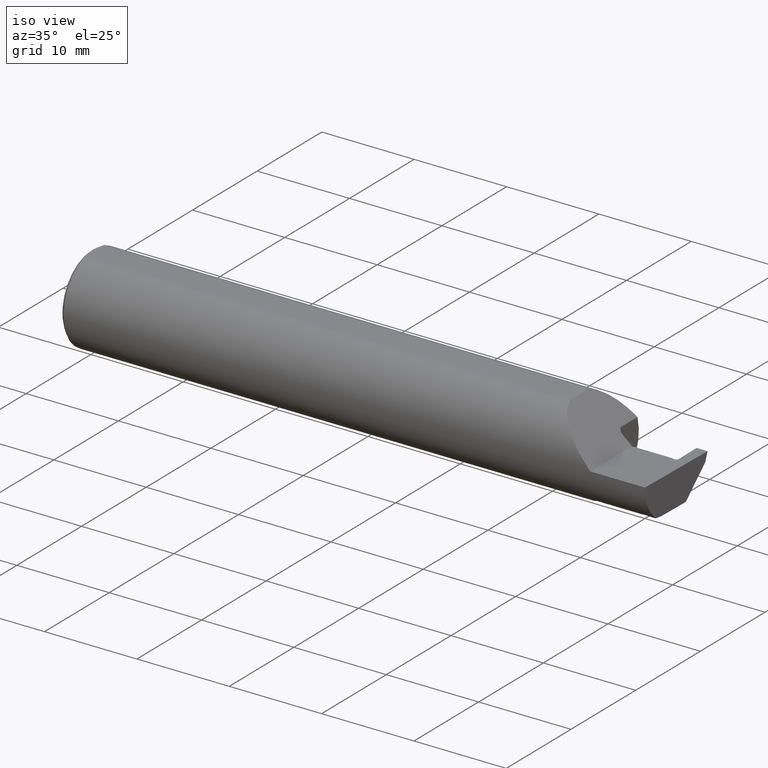
[diagram: clean part render]
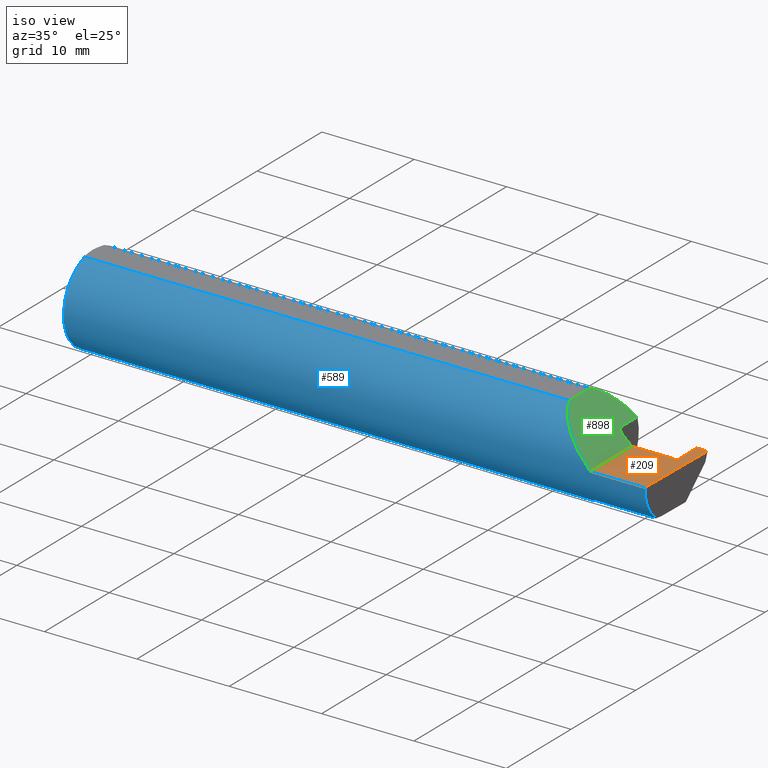
[diagram: same view with three faces highlighted in distinct colors, each labeled with its STEP entity id]
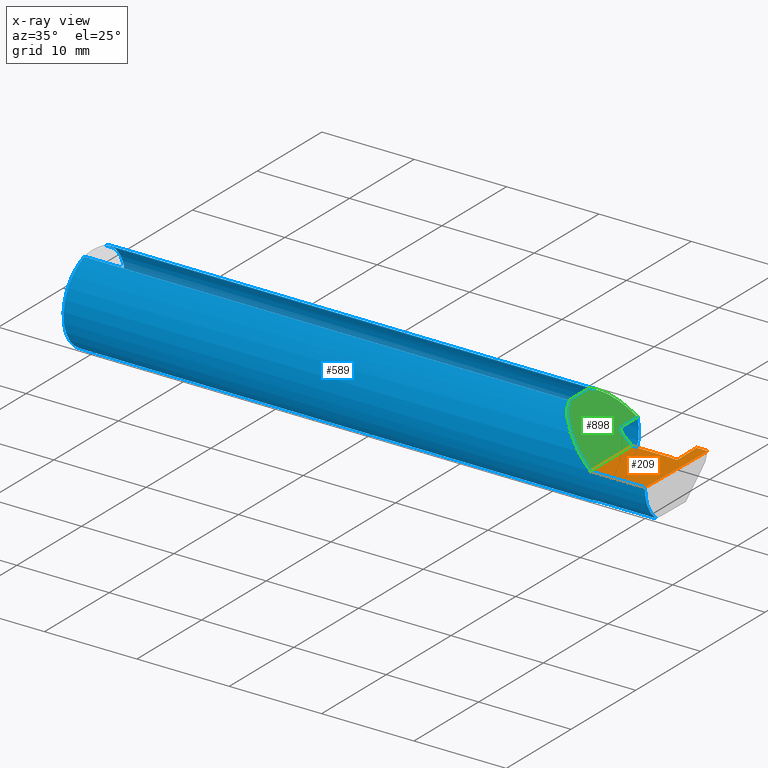
[diagram: x-ray of the same camera — body ghosted, the three highlighted faces saturated]
A machine part, iso view with three faces highlighted in distinct colors.
The next image is the same camera in x-ray (body ghosted, the three faces saturated) — at least one of them is partly hidden behind the body in this view.
Their STEP definitions:

[orange] entity #209 — the highlighted planar face has unit normal (-0, 0, -1).
#19 = CARTESIAN_POINT ( 'NONE',  ( 2.432999999988582296, 0.06464999999899190275, 1.634762571518729889E-10 ) ) ;
#24 = EDGE_CURVE ( 'NONE', #698, #407, #79, .T. ) ;
#39 = ORIENTED_EDGE ( 'NONE', *, *, #136, .T. ) ;
#53 = EDGE_CURVE ( 'NONE', #407, #386, #74, .T. ) ;
#58 = CARTESIAN_POINT ( 'NONE',  ( 2.260000000000000231, -0.1873499999999999888, 2.939152317953647352E-17 ) ) ;
#74 = LINE ( 'NONE', #361, #582 ) ;
#79 = LINE ( 'NONE', #500, #92 ) ;
#92 = VECTOR ( 'NONE', #443, 39.37007874015748143 ) ;
#96 = CARTESIAN_POINT ( 'NONE',  ( 2.452999999986549717, 0.1846500000000000363, -3.367778697655196529E-19 ) ) ;
#104 = ORIENTED_EDGE ( 'NONE', *, *, #891, .F. ) ;
#115 = ORIENTED_EDGE ( 'NONE', *, *, #53, .F. ) ;
#121 = LINE ( 'NONE', #694, #131 ) ;
#131 = VECTOR ( 'NONE', #815, 39.37007874015748143 ) ;
#136 = EDGE_CURVE ( 'NONE', #606, #875, #685, .T. ) ;
#169 = VERTEX_POINT ( 'NONE', #181 ) ;
#181 = CARTESIAN_POINT ( 'NONE',  ( 2.431000000000000494, 0.06664999999999988989, 9.135099441613365556E-18 ) ) ;
#194 = LINE ( 'NONE', #680, #519 ) ;
#209 = ADVANCED_FACE ( 'NONE', ( #528 ), #390, .F. ) ;
#231 = CARTESIAN_POINT ( 'NONE',  ( 2.447971356043616264, 0.06464999999999866687, -4.347370564169126606E-11 ) ) ;
#241 = CARTESIAN_POINT ( 'NONE',  ( 2.454970289910081593, 0.07177216684492376819, -4.877016300601304121E-11 ) ) ;
#259 = CARTESIAN_POINT ( 'NONE',  ( 2.454970289910081593, 0.07177216684492376819, -4.877016300601304121E-11 ) ) ;
#277 = VERTEX_POINT ( 'NONE', #914 ) ;
#286 = CARTESIAN_POINT ( 'NONE',  ( 2.454970289910081593, 0.07177216684492376819, -4.877016300601304121E-11 ) ) ;
#323 = LINE ( 'NONE', #547, #325 ) ;
#325 = VECTOR ( 'NONE', #470, 39.37007874015748143 ) ;
#361 = CARTESIAN_POINT ( 'NONE',  ( 3.749399456654646757E-32, -0.1873499999999999888, 3.061616997868384127E-16 ) ) ;
#365 = CARTESIAN_POINT ( 'NONE',  ( 2.431000000000000494, 0.06664999999999988989, 9.135099441613365556E-18 ) ) ;
#386 = VERTEX_POINT ( 'NONE', #58 ) ;
#390 = PLANE ( 'NONE',  #540 ) ;
#396 = ORIENTED_EDGE ( 'NONE', *, *, #851, .T. ) ;
#407 = VERTEX_POINT ( 'NONE', #918 ) ;
#443 = DIRECTION ( 'NONE',  ( -0.01745240643727703073, -0.9998476951563912696, 0.000000000000000000 ) ) ;
#452 = EDGE_CURVE ( 'NONE', #900, #606, #910, .T. ) ;
#455 = EDGE_LOOP ( 'NONE', ( #115, #793, #621, #396, #805, #39, #774, #104, #688 ) ) ;
#458 = EDGE_CURVE ( 'NONE', #875, #169, #469, .T. ) ;
#469 = B_SPLINE_CURVE_WITH_KNOTS ( 'NONE', 1,
 ( #792, #365 ),
 .UNSPECIFIED., .F., .F.,
 ( 2, 2 ),
 ( 0.000000000000000000, 7.184204878158464156E-05 ),
 .UNSPECIFIED. ) ;
#470 = DIRECTION ( 'NONE',  ( 1.000000000000000000, -0.000000000000000000, -0.000000000000000000 ) ) ;
#500 = CARTESIAN_POINT ( 'NONE',  ( 2.500000000000000000, 0.1846500000000000363, 0.000000000000000000 ) ) ;
#503 = CARTESIAN_POINT ( 'NONE',  ( 2.447971356043616264, 0.06464999999999866687, -4.347370564169126606E-11 ) ) ;
#512 = CARTESIAN_POINT ( 'NONE',  ( 2.452128833457462687, 0.06464999999995883762, -4.700298922309772551E-11 ) ) ;
#513 = VERTEX_POINT ( 'NONE', #96 ) ;
#519 = VECTOR ( 'NONE', #536, 39.37007874015748143 ) ;
#528 = FACE_OUTER_BOUND ( 'NONE', #455, .T. ) ;
#536 = DIRECTION ( 'NONE',  ( 1.000000000000000000, 0.000000000000000000, 0.000000000000000000 ) ) ;
#540 = AXIS2_PLACEMENT_3D ( 'NONE', #669, #605, #749 ) ;
#547 = CARTESIAN_POINT ( 'NONE',  ( 2.399999999999999911, 0.1846500000000000363, -3.367778697655196529E-19 ) ) ;
#572 = CARTESIAN_POINT ( 'NONE',  ( 2.455042847893950775, 0.06761532263369882112, -4.782922004236755124E-11 ) ) ;
#582 = VECTOR ( 'NONE', #595, 39.37007874015748143 ) ;
#595 = DIRECTION ( 'NONE',  ( -1.000000000000000000, -0.000000000000000000, -0.000000000000000000 ) ) ;
#605 = DIRECTION ( 'NONE',  ( -1.224646799147353700E-16, 0.000000000000000000, -1.000000000000000000 ) ) ;
#606 = VERTEX_POINT ( 'NONE', #668 ) ;
#621 = ORIENTED_EDGE ( 'NONE', *, *, #911, .F. ) ;
#651 = B_SPLINE_CURVE_WITH_KNOTS ( 'NONE', 1,
 ( #742, #241 ),
 .UNSPECIFIED., .F., .F.,
 ( 2, 2 ),
 ( 6.218240129447693061E-15, 0.002867533701424562331 ),
 .UNSPECIFIED. ) ;
#668 = CARTESIAN_POINT ( 'NONE',  ( 2.447971356043616264, 0.06464999999999866687, -4.347370564169126606E-11 ) ) ;
#669 = CARTESIAN_POINT ( 'NONE',  ( 2.500000000000000000, -0.2000000000000000111, 0.000000000000000000 ) ) ;
#680 = CARTESIAN_POINT ( 'NONE',  ( 2.205000000000000071, 0.06665000000000001479, 3.612708057484693206E-17 ) ) ;
#685 = B_SPLINE_CURVE_WITH_KNOTS ( 'NONE', 1,
 ( #231, #19 ),
 .UNSPECIFIED., .F., .F.,
 ( 2, 2 ),
 ( 1.387778780781445521E-17, 0.0003802724437978743932 ),
 .UNSPECIFIED. ) ;
#688 = ORIENTED_EDGE ( 'NONE', *, *, #924, .F. ) ;
#694 = CARTESIAN_POINT ( 'NONE',  ( 2.260000000000000231, -0.2000000000000000111, 2.939152317953647352E-17 ) ) ;
#698 = VERTEX_POINT ( 'NONE', #907 ) ;
#742 = CARTESIAN_POINT ( 'NONE',  ( 2.452999999986549717, 0.1846500000000000363, -3.367778697655196529E-19 ) ) ;
#749 = DIRECTION ( 'NONE',  ( -1.000000000000000000, 0.000000000000000000, 1.224646799147353700E-16 ) ) ;
#774 = ORIENTED_EDGE ( 'NONE', *, *, #458, .T. ) ;
#792 = CARTESIAN_POINT ( 'NONE',  ( 2.432999999988582296, 0.06464999999899190275, 1.634762571518729889E-10 ) ) ;
#793 = ORIENTED_EDGE ( 'NONE', *, *, #24, .F. ) ;
#805 = ORIENTED_EDGE ( 'NONE', *, *, #452, .T. ) ;
#815 = DIRECTION ( 'NONE',  ( -0.000000000000000000, 1.000000000000000000, -0.000000000000000000 ) ) ;
#851 = EDGE_CURVE ( 'NONE', #513, #900, #651, .T. ) ;
#875 = VERTEX_POINT ( 'NONE', #887 ) ;
#887 = CARTESIAN_POINT ( 'NONE',  ( 2.432999999988582296, 0.06464999999899190275, 1.634762571518729889E-10 ) ) ;
#891 = EDGE_CURVE ( 'NONE', #277, #169, #194, .T. ) ;
#900 = VERTEX_POINT ( 'NONE', #259 ) ;
#907 = CARTESIAN_POINT ( 'NONE',  ( 2.500000000000000000, 0.1846500000000000363, 0.000000000000000000 ) ) ;
#910 =( BOUNDED_CURVE ( )  B_SPLINE_CURVE ( 3, ( #286, #572, #512, #503 ),
 .UNSPECIFIED., .F., .T. ) 
 B_SPLINE_CURVE_WITH_KNOTS ( ( 4, 4 ),
 ( 1.301042606982605513E-18, 0.0002808519284744346906 ),
 .UNSPECIFIED. ) 
 CURVE ( )  GEOMETRIC_REPRESENTATION_ITEM ( )  RATIONAL_B_SPLINE_CURVE ( ( 1.000000000000000000, 0.8006061761999021531, 0.8006061761999021531, 1.000000000000000000 ) ) 
 REPRESENTATION_ITEM ( '' )  );
#911 = EDGE_CURVE ( 'NONE', #513, #698, #323, .T. ) ;
#914 = CARTESIAN_POINT ( 'NONE',  ( 2.260000000000000231, 0.06664999999999998703, 2.939152317953647352E-17 ) ) ;
#918 = CARTESIAN_POINT ( 'NONE',  ( 2.493506715846705468, -0.1873499999999999888, 0.000000000000000000 ) ) ;
#924 = EDGE_CURVE ( 'NONE', #386, #277, #121, .T. ) ;

[blue] entity #589 — the highlighted cylindrical surface (partial cylindrical patch) has radius 4.7587 mm, axis along (-1, -0, -0).
#1 = CARTESIAN_POINT ( 'NONE',  ( 2.205000000000000071, 0.1790950097015547027, 0.05500000000000044437 ) ) ;
#2 = CARTESIAN_POINT ( 'NONE',  ( 2.452970636338613453, -0.1208513501369361531, -0.1431606568512440725 ) ) ;
#3 = VERTEX_POINT ( 'NONE', #292 ) ;
#12 = CARTESIAN_POINT ( 'NONE',  ( 2.491063981715931686, -0.1623470442677541759, -0.1099340280425337851 ) ) ;
#13 =( BOUNDED_CURVE ( )  B_SPLINE_CURVE ( 3, ( #379, #12, #440, #85 ),
 .UNSPECIFIED., .F., .T. ) 
 B_SPLINE_CURVE_WITH_KNOTS ( ( 4, 4 ),
 ( 0.08839520912052888091, 0.9829226100289757406 ),
 .UNSPECIFIED. ) 
 CURVE ( )  GEOMETRIC_REPRESENTATION_ITEM ( )  RATIONAL_B_SPLINE_CURVE ( ( 1.000000000000000000, 0.9344226172588803170, 0.9344226172588803170, 1.000000000000000000 ) ) 
 REPRESENTATION_ITEM ( '' )  );
#29 = CARTESIAN_POINT ( 'NONE',  ( 2.176950117609040891, -0.1873500000000001275, 0.08304988239095997815 ) ) ;
#32 = CARTESIAN_POINT ( 'NONE',  ( 0.000000000000000000, 0.06039039658753697637, 0.1773499999999999799 ) ) ;
#38 = AXIS2_PLACEMENT_3D ( 'NONE', #100, #817, #798 ) ;
#43 = CARTESIAN_POINT ( 'NONE',  ( 2.447366197523236586, -0.1205152561587170268, -0.1434437764735944087 ) ) ;
#50 = ORIENTED_EDGE ( 'NONE', *, *, #839, .F. ) ;
#53 = EDGE_CURVE ( 'NONE', #407, #386, #74, .T. ) ;
#58 = CARTESIAN_POINT ( 'NONE',  ( 2.260000000000000231, -0.1873499999999999888, 2.939152317953647352E-17 ) ) ;
#59 = B_SPLINE_CURVE_WITH_KNOTS ( 'NONE', 3,
 ( #864, #643, #217, #633, #213, #2 ),
 .UNSPECIFIED., .F., .F.,
 ( 4, 2, 4 ),
 ( 0.0002880367379712617682, 0.0003798719638981595814, 0.0004717071898250573946 ),
 .UNSPECIFIED. ) ;
#60 = EDGE_CURVE ( 'NONE', #386, #566, #818, .T. ) ;
#64 = CARTESIAN_POINT ( 'NONE',  ( 2.438025625059659696, -0.1199519675431318100, -0.1439150721173130809 ) ) ;
#69 = CARTESIAN_POINT ( 'NONE',  ( 0.01499999999999999944, 0.000000000000000000, 0.000000000000000000 ) ) ;
#74 = LINE ( 'NONE', #361, #582 ) ;
#84 = EDGE_CURVE ( 'NONE', #491, #126, #362, .T. ) ;
#85 = CARTESIAN_POINT ( 'NONE',  ( 2.493506715846705468, -0.1873499999999999888, 0.000000000000000000 ) ) ;
#87 = ORIENTED_EDGE ( 'NONE', *, *, #84, .F. ) ;
#89 = CARTESIAN_POINT ( 'NONE',  ( 2.213439486659307676, -0.1064616213911158960, -0.1542305641651499637 ) ) ;
#100 = CARTESIAN_POINT ( 'NONE',  ( 0.000000000000000000, 0.000000000000000000, 0.000000000000000000 ) ) ;
#101 = VECTOR ( 'NONE', #612, 39.37007874015748143 ) ;
#103 = B_SPLINE_CURVE_WITH_KNOTS ( 'NONE', 3,
 ( #526, #228, #156, #371, #383, #89, #457, #520, #170, #658, #374, #166 ),
 .UNSPECIFIED., .F., .F.,
 ( 4, 2, 2, 2, 2, 4 ),
 ( 1.967976973658592312E-07, 0.0002120314145722278145, 0.0004238660314470897345, 0.0008475352651968003472, 0.001271204498946511014, 0.001694873732696221573 ),
 .UNSPECIFIED. ) ;
#126 = VERTEX_POINT ( 'NONE', #460 ) ;
#130 = ORIENTED_EDGE ( 'NONE', *, *, #224, .F. ) ;
#140 = DIRECTION ( 'NONE',  ( 0.000000000000000000, 0.000000000000000000, 1.000000000000000000 ) ) ;
#154 = CARTESIAN_POINT ( 'NONE',  ( 2.436647136148048620, -0.1172600179964007061, -0.1461167706989303094 ) ) ;
#156 = CARTESIAN_POINT ( 'NONE',  ( 2.224511795768553846, -0.1163687266324235220, -0.1468371510166788241 ) ) ;
#165 = VERTEX_POINT ( 'NONE', #518 ) ;
#166 = CARTESIAN_POINT ( 'NONE',  ( 2.205000000000000071, -0.06851976604679065053, -0.1743704796142198643 ) ) ;
#170 = CARTESIAN_POINT ( 'NONE',  ( 2.206843912362378646, -0.08846956905169091334, -0.1652353808078972641 ) ) ;
#182 = VECTOR ( 'NONE', #197, 39.37007874015748143 ) ;
#183 = VERTEX_POINT ( 'NONE', #677 ) ;
#188 = LINE ( 'NONE', #328, #101 ) ;
#189 = CARTESIAN_POINT ( 'NONE',  ( 2.452970636338613453, -0.1208513501369361531, -0.1431606568512440725 ) ) ;
#193 = B_SPLINE_CURVE_WITH_KNOTS ( 'NONE', 3,
 ( #568, #923, #863, #285 ),
 .UNSPECIFIED., .F., .F.,
 ( 4, 4 ),
 ( 4.610090873601838277E-18, 9.501582085341606619E-05 ),
 .UNSPECIFIED. ) ;
#197 = DIRECTION ( 'NONE',  ( -1.000000000000000000, -0.000000000000000000, -0.000000000000000000 ) ) ;
#205 = CARTESIAN_POINT ( 'NONE',  ( 2.445498067408689469, -0.1204029065482854904, -0.1435380930435697644 ) ) ;
#210 = ORIENTED_EDGE ( 'NONE', *, *, #748, .F. ) ;
#213 = CARTESIAN_POINT ( 'NONE',  ( 2.454215874547053922, -0.1209258949558986995, -0.1430977286542417515 ) ) ;
#217 = CARTESIAN_POINT ( 'NONE',  ( 2.457039432924772893, -0.1189753745793368372, -0.1447262979170398645 ) ) ;
#221 = CARTESIAN_POINT ( 'NONE',  ( 2.082650000000001445, 0.06039039658753697637, 0.1773499999999999799 ) ) ;
#224 = EDGE_CURVE ( 'NONE', #838, #592, #705, .T. ) ;
#226 = DIRECTION ( 'NONE',  ( -1.000000000000000000, -0.000000000000000000, -0.000000000000000000 ) ) ;
#228 = CARTESIAN_POINT ( 'NONE',  ( 2.227174967710399134, -0.1172600179964007061, -0.1461167706989302539 ) ) ;
#230 = EDGE_CURVE ( 'NONE', #486, #356, #449, .T. ) ;
#237 = CARTESIAN_POINT ( 'NONE',  ( 0.01499999999999756042, 0.06039039658754215278, 0.1773499999999999799 ) ) ;
#247 = CARTESIAN_POINT ( 'NONE',  ( 2.082650000000001445, -0.06039039658753699025, 0.1773499999999999799 ) ) ;
#262 = EDGE_CURVE ( 'NONE', #3, #183, #706, .T. ) ;
#272 = ORIENTED_EDGE ( 'NONE', *, *, #53, .T. ) ;
#275 = CARTESIAN_POINT ( 'NONE',  ( 2.102408703912463483, 0.1184162804513036737, 0.1575912960875374691 ) ) ;
#285 = CARTESIAN_POINT ( 'NONE',  ( 2.436647136148048620, -0.1172600179964007061, -0.1461167706989303094 ) ) ;
#287 = ORIENTED_EDGE ( 'NONE', *, *, #824, .T. ) ;
#288 = EDGE_CURVE ( 'NONE', #721, #165, #869, .T. ) ;
#292 = CARTESIAN_POINT ( 'NONE',  ( 2.490903355898018923, -0.1172600179964007477, -0.1461167706989302817 ) ) ;
#300 = CYLINDRICAL_SURFACE ( 'NONE', #38, 0.1873499999999999888 ) ;
#306 = DIRECTION ( 'NONE',  ( -1.000000000000000000, -0.000000000000000000, -0.000000000000000000 ) ) ;
#308 = AXIS2_PLACEMENT_3D ( 'NONE', #69, #226, #140 ) ;
#315 = AXIS2_PLACEMENT_3D ( 'NONE', #664, #306, #590 ) ;
#320 = DIRECTION ( 'NONE',  ( -1.000000000000000000, -0.000000000000000000, -0.000000000000000000 ) ) ;
#328 = CARTESIAN_POINT ( 'NONE',  ( 0.000000000000000000, -0.06039039658753697637, 0.1773499999999999799 ) ) ;
#356 = VERTEX_POINT ( 'NONE', #555 ) ;
#361 = CARTESIAN_POINT ( 'NONE',  ( 3.749399456654646757E-32, -0.1873499999999999888, 3.061616997868384127E-16 ) ) ;
#362 = CIRCLE ( 'NONE', #478, 0.1873499999999999888 ) ;
#371 = CARTESIAN_POINT ( 'NONE',  ( 2.220028532764138252, -0.1137241120808236000, -0.1488947809299402958 ) ) ;
#374 = CARTESIAN_POINT ( 'NONE',  ( 2.204999999999999627, -0.07368234487347197215, -0.1723418180300748115 ) ) ;
#379 = CARTESIAN_POINT ( 'NONE',  ( 2.490903355898018923, -0.1172600179964007477, -0.1461167706989302817 ) ) ;
#383 = CARTESIAN_POINT ( 'NONE',  ( 2.218203859946834555, -0.1120371980050638844, -0.1501764597936558476 ) ) ;
#386 = VERTEX_POINT ( 'NONE', #58 ) ;
#388 = DIRECTION ( 'NONE',  ( -1.000000000000000000, -0.000000000000000000, -0.000000000000000000 ) ) ;
#395 = CARTESIAN_POINT ( 'NONE',  ( 2.082650000000001445, -0.06039039658753699025, 0.1773499999999999799 ) ) ;
#398 = VECTOR ( 'NONE', #388, 39.37007874015748143 ) ;
#407 = VERTEX_POINT ( 'NONE', #918 ) ;
#410 = CARTESIAN_POINT ( 'NONE',  ( 2.338999999999999968, -0.1172600179964007477, -0.1461167706989302817 ) ) ;
#414 = CARTESIAN_POINT ( 'NONE',  ( 2.450479766355329048, -0.1207021382821599764, -0.1432865166685463043 ) ) ;
#429 = CARTESIAN_POINT ( 'NONE',  ( 2.205000000000000071, -0.06851976604679065053, -0.1743704796142198643 ) ) ;
#440 = CARTESIAN_POINT ( 'NONE',  ( 2.491992669264299742, -0.1873499999999999888, -0.05781030015605114619 ) ) ;
#444 = EDGE_CURVE ( 'NONE', #183, #721, #59, .T. ) ;
#449 = LINE ( 'NONE', #874, #895 ) ;
#453 = LINE ( 'NONE', #32, #398 ) ;
#457 = CARTESIAN_POINT ( 'NONE',  ( 2.211304331342287988, -0.1022198306720691757, -0.1570962426853818317 ) ) ;
#460 = CARTESIAN_POINT ( 'NONE',  ( 2.205000000000000071, 0.1790950097015547027, 0.05500000000000044437 ) ) ;
#465 = ORIENTED_EDGE ( 'NONE', *, *, #511, .F. ) ;
#468 = VERTEX_POINT ( 'NONE', #563 ) ;
#478 = AXIS2_PLACEMENT_3D ( 'NONE', #812, #889, #522 ) ;
#486 = VERTEX_POINT ( 'NONE', #154 ) ;
#489 = EDGE_CURVE ( 'NONE', #592, #468, #860, .T. ) ;
#491 = VERTEX_POINT ( 'NONE', #429 ) ;
#511 = EDGE_CURVE ( 'NONE', #707, #838, #453, .T. ) ;
#518 = CARTESIAN_POINT ( 'NONE',  ( 2.438025625059659696, -0.1199519675431318100, -0.1439150721173130809 ) ) ;
#520 = CARTESIAN_POINT ( 'NONE',  ( 2.207960551809340810, -0.09317341542745750937, -0.1626248379125196930 ) ) ;
#522 = DIRECTION ( 'NONE',  ( 0.000000000000000000, 0.000000000000000000, -1.000000000000000000 ) ) ;
#526 = CARTESIAN_POINT ( 'NONE',  ( 2.229999999999999982, -0.1172600179964006922, -0.1461167706989302817 ) ) ;
#529 = ORIENTED_EDGE ( 'NONE', *, *, #737, .T. ) ;
#545 = CARTESIAN_POINT ( 'NONE',  ( 2.441761829506831738, -0.1201777670996134612, -0.1437266445542133841 ) ) ;
#555 = CARTESIAN_POINT ( 'NONE',  ( 2.229999999999999982, -0.1172600179964006922, -0.1461167706989302817 ) ) ;
#556 = ORIENTED_EDGE ( 'NONE', *, *, #444, .F. ) ;
#563 = CARTESIAN_POINT ( 'NONE',  ( 0.01499999999999999944, -0.06039039658753697637, 0.1773499999999999799 ) ) ;
#565 =( BOUNDED_CURVE ( )  B_SPLINE_CURVE ( 3, ( #221, #275, #642, #1 ),
 .UNSPECIFIED., .F., .T. ) 
 B_SPLINE_CURVE_WITH_KNOTS ( ( 4, 4 ),
 ( 0.3282003792178449508, 1.272838961666674873 ),
 .UNSPECIFIED. ) 
 CURVE ( )  GEOMETRIC_REPRESENTATION_ITEM ( )  RATIONAL_B_SPLINE_CURVE ( ( 1.000000000000000000, 0.9270103440186696631, 0.9270103440186696631, 1.000000000000000000 ) ) 
 REPRESENTATION_ITEM ( '' )  );
#566 = VERTEX_POINT ( 'NONE', #247 ) ;
#568 = CARTESIAN_POINT ( 'NONE',  ( 2.438025625059659696, -0.1199519675431318100, -0.1439150721173130809 ) ) ;
#582 = VECTOR ( 'NONE', #595, 39.37007874015748143 ) ;
#589 = ADVANCED_FACE ( 'NONE', ( #877 ), #300, .T. ) ;
#590 = DIRECTION ( 'NONE',  ( 0.000000000000000000, 0.000000000000000000, 1.000000000000000000 ) ) ;
#592 = VERTEX_POINT ( 'NONE', #594 ) ;
#594 = CARTESIAN_POINT ( 'NONE',  ( 0.01499999999999999944, 0.000000000000000000, -0.1873499999999999888 ) ) ;
#595 = DIRECTION ( 'NONE',  ( -1.000000000000000000, -0.000000000000000000, -0.000000000000000000 ) ) ;
#597 = ORIENTED_EDGE ( 'NONE', *, *, #60, .T. ) ;
#601 = CARTESIAN_POINT ( 'NONE',  ( 2.109420298020488804, -0.1390074056189584684, 0.1505797019795120650 ) ) ;
#612 = DIRECTION ( 'NONE',  ( 1.000000000000000000, 0.000000000000000000, 0.000000000000000000 ) ) ;
#616 = ORIENTED_EDGE ( 'NONE', *, *, #230, .F. ) ;
#619 = CARTESIAN_POINT ( 'NONE',  ( 2.452970636338613453, -0.1208513501369361531, -0.1431606568512440725 ) ) ;
#626 = ORIENTED_EDGE ( 'NONE', *, *, #489, .F. ) ;
#633 = CARTESIAN_POINT ( 'NONE',  ( 2.455366610645389969, -0.1203676099590725301, -0.1435704688917810168 ) ) ;
#642 = CARTESIAN_POINT ( 'NONE',  ( 2.146403178835508463, 0.1610999512718552795, 0.1135968211644918235 ) ) ;
#643 = CARTESIAN_POINT ( 'NONE',  ( 2.457654169373977293, -0.1181371521106755890, -0.1454128627112767080 ) ) ;
#658 = CARTESIAN_POINT ( 'NONE',  ( 2.205358271039144391, -0.07873626113568084339, -0.1700887912276896619 ) ) ;
#664 = CARTESIAN_POINT ( 'NONE',  ( 0.01499999999999999944, 0.000000000000000000, 0.000000000000000000 ) ) ;
#670 = ORIENTED_EDGE ( 'NONE', *, *, #880, .F. ) ;
#677 = CARTESIAN_POINT ( 'NONE',  ( 2.458156987516915581, -0.1172600179964006784, -0.1461167706989302262 ) ) ;
#687 = CARTESIAN_POINT ( 'NONE',  ( 2.451725198846265386, -0.1207767932037570741, -0.1432235952746555019 ) ) ;
#692 = CARTESIAN_POINT ( 'NONE',  ( 2.439893721692793616, -0.1200649772597332660, -0.1438208794962179404 ) ) ;
#700 = CARTESIAN_POINT ( 'NONE',  ( 2.082650000000001445, 0.06039039658753697637, 0.1773499999999999799 ) ) ;
#702 = ORIENTED_EDGE ( 'NONE', *, *, #262, .F. ) ;
#705 = CIRCLE ( 'NONE', #315, 0.1873499999999999888 ) ;
#706 = LINE ( 'NONE', #410, #182 ) ;
#707 = VERTEX_POINT ( 'NONE', #700 ) ;
#721 = VERTEX_POINT ( 'NONE', #189 ) ;
#737 = EDGE_CURVE ( 'NONE', #707, #126, #565, .T. ) ;
#748 = EDGE_CURVE ( 'NONE', #165, #486, #193, .T. ) ;
#750 = ORIENTED_EDGE ( 'NONE', *, *, #288, .F. ) ;
#754 = CARTESIAN_POINT ( 'NONE',  ( 2.260000000000000231, -0.1873499999999999888, 2.939152317953647352E-17 ) ) ;
#798 = DIRECTION ( 'NONE',  ( 0.000000000000000000, 0.000000000000000000, 1.000000000000000000 ) ) ;
#812 = CARTESIAN_POINT ( 'NONE',  ( 2.205000000000000071, 0.000000000000000000, 0.000000000000000000 ) ) ;
#817 = DIRECTION ( 'NONE',  ( -1.000000000000000000, -0.000000000000000000, -0.000000000000000000 ) ) ;
#818 =( BOUNDED_CURVE ( )  B_SPLINE_CURVE ( 3, ( #754, #29, #601, #395 ),
 .UNSPECIFIED., .F., .F. ) 
 B_SPLINE_CURVE_WITH_KNOTS ( ( 4, 4 ),
 ( 4.712388980384688786, 5.954984927961740837 ),
 .UNSPECIFIED. ) 
 CURVE ( )  GEOMETRIC_REPRESENTATION_ITEM ( )  RATIONAL_B_SPLINE_CURVE ( ( 1.000000000000000000, 0.8754157352537689230, 0.8754157352537689230, 1.000000000000000000 ) ) 
 REPRESENTATION_ITEM ( '' )  );
#824 = EDGE_CURVE ( 'NONE', #3, #407, #13, .T. ) ;
#833 = CARTESIAN_POINT ( 'NONE',  ( 2.449234338863458760, -0.1206273854352417213, -0.1433494205884963957 ) ) ;
#838 = VERTEX_POINT ( 'NONE', #237 ) ;
#839 = EDGE_CURVE ( 'NONE', #356, #491, #103, .T. ) ;
#860 = CIRCLE ( 'NONE', #308, 0.1873499999999999888 ) ;
#863 = CARTESIAN_POINT ( 'NONE',  ( 2.437107804970411795, -0.1181637442922656711, -0.1453915222472292601 ) ) ;
#864 = CARTESIAN_POINT ( 'NONE',  ( 2.458156987516915581, -0.1172600179964006784, -0.1461167706989302262 ) ) ;
#869 = B_SPLINE_CURVE_WITH_KNOTS ( 'NONE', 3,
 ( #619, #687, #414, #833, #43, #205, #903, #545, #692, #64 ),
 .UNSPECIFIED., .F., .F.,
 ( 4, 3, 3, 4 ),
 ( 0.000000000000000000, 9.519312345566919849E-05, 0.0002379828170348225011, 0.0003807725187854991847 ),
 .UNSPECIFIED. ) ;
#874 = CARTESIAN_POINT ( 'NONE',  ( 2.338999999999999968, -0.1172600179964007477, -0.1461167706989302817 ) ) ;
#877 = FACE_OUTER_BOUND ( 'NONE', #894, .T. ) ;
#880 = EDGE_CURVE ( 'NONE', #468, #566, #188, .T. ) ;
#889 = DIRECTION ( 'NONE',  ( 1.000000000000000000, 0.000000000000000000, 0.000000000000000000 ) ) ;
#894 = EDGE_LOOP ( 'NONE', ( #702, #287, #272, #597, #670, #626, #130, #465, #529, #87, #50, #616, #210, #750, #556 ) ) ;
#895 = VECTOR ( 'NONE', #320, 39.37007874015748143 ) ;
#903 = CARTESIAN_POINT ( 'NONE',  ( 2.443629948511212735, -0.1202903368271704132, -0.1436323687961940654 ) ) ;
#918 = CARTESIAN_POINT ( 'NONE',  ( 2.493506715846705468, -0.1873499999999999888, 0.000000000000000000 ) ) ;
#923 = CARTESIAN_POINT ( 'NONE',  ( 2.437567358599292966, -0.1190611272264851667, -0.1446575798142234470 ) ) ;

[green] entity #898 — the highlighted planar face has unit normal (-0.7071, 0, -0.7071).
#1 = CARTESIAN_POINT ( 'NONE',  ( 2.205000000000000071, 0.1790950097015547027, 0.05500000000000044437 ) ) ;
#14 = CARTESIAN_POINT ( 'NONE',  ( 2.260000000000000231, 0.06664999999999998703, 2.939152317953647352E-17 ) ) ;
#18 = CARTESIAN_POINT ( 'NONE',  ( 2.082650000000001445, -0.1873500000000000165, 0.1773499999999999799 ) ) ;
#29 = CARTESIAN_POINT ( 'NONE',  ( 2.176950117609040891, -0.1873500000000001275, 0.08304988239095997815 ) ) ;
#55 = AXIS2_PLACEMENT_3D ( 'NONE', #901, #481, #476 ) ;
#58 = CARTESIAN_POINT ( 'NONE',  ( 2.260000000000000231, -0.1873499999999999888, 2.939152317953647352E-17 ) ) ;
#60 = EDGE_CURVE ( 'NONE', #386, #566, #818, .T. ) ;
#118 = CARTESIAN_POINT ( 'NONE',  ( 2.224592470555872836, 0.06287337828823326424, 0.03540752944412774855 ) ) ;
#121 = LINE ( 'NONE', #694, #131 ) ;
#126 = VERTEX_POINT ( 'NONE', #460 ) ;
#131 = VECTOR ( 'NONE', #815, 39.37007874015748143 ) ;
#160 = ORIENTED_EDGE ( 'NONE', *, *, #60, .F. ) ;
#190 = CARTESIAN_POINT ( 'NONE',  ( 2.211520456256380385, 0.06688403108856616486, 0.04847954374361988783 ) ) ;
#221 = CARTESIAN_POINT ( 'NONE',  ( 2.082650000000001445, 0.06039039658753697637, 0.1773499999999999799 ) ) ;
#242 = LINE ( 'NONE', #18, #355 ) ;
#247 = CARTESIAN_POINT ( 'NONE',  ( 2.082650000000001445, -0.06039039658753699025, 0.1773499999999999799 ) ) ;
#249 = VERTEX_POINT ( 'NONE', #841 ) ;
#267 = CARTESIAN_POINT ( 'NONE',  ( 2.219230369976860295, 0.06337349534376400528, 0.04076963002314064333 ) ) ;
#271 = CARTESIAN_POINT ( 'NONE',  ( 2.209174443422547540, 0.06905248475529517094, 0.05082555657745251726 ) ) ;
#275 = CARTESIAN_POINT ( 'NONE',  ( 2.102408703912463483, 0.1184162804513036737, 0.1575912960875374691 ) ) ;
#277 = VERTEX_POINT ( 'NONE', #914 ) ;
#314 = CARTESIAN_POINT ( 'NONE',  ( 2.239881184731320030, 0.06563637295415016004, 0.02011881526868028111 ) ) ;
#321 = ORIENTED_EDGE ( 'NONE', *, *, #924, .T. ) ;
#335 = EDGE_CURVE ( 'NONE', #683, #249, #802, .T. ) ;
#355 = VECTOR ( 'NONE', #532, 39.37007874015748143 ) ;
#372 = CARTESIAN_POINT ( 'NONE',  ( 2.229999999999999982, 0.06361938456699060829, 0.03000000000000039788 ) ) ;
#386 = VERTEX_POINT ( 'NONE', #58 ) ;
#395 = CARTESIAN_POINT ( 'NONE',  ( 2.082650000000001445, -0.06039039658753699025, 0.1773499999999999799 ) ) ;
#411 = ORIENTED_EDGE ( 'NONE', *, *, #844, .F. ) ;
#450 = ORIENTED_EDGE ( 'NONE', *, *, #583, .F. ) ;
#460 = CARTESIAN_POINT ( 'NONE',  ( 2.205000000000000071, 0.1790950097015547027, 0.05500000000000044437 ) ) ;
#467 = CARTESIAN_POINT ( 'NONE',  ( 2.227316790845961680, 0.06307167679193396992, 0.03268320915403863380 ) ) ;
#476 = DIRECTION ( 'NONE',  ( -0.7071067811865454633, 0.000000000000000000, 0.7071067811865496822 ) ) ;
#481 = DIRECTION ( 'NONE',  ( -0.7071067811865496822, 0.000000000000000000, -0.7071067811865454633 ) ) ;
#532 = DIRECTION ( 'NONE',  ( 0.000000000000000000, -1.000000000000000000, 0.000000000000000000 ) ) ;
#550 = CARTESIAN_POINT ( 'NONE',  ( 2.229999999999999982, 0.06361938456699060829, 0.03000000000000039788 ) ) ;
#551 = ORIENTED_EDGE ( 'NONE', *, *, #620, .T. ) ;
#565 =( BOUNDED_CURVE ( )  B_SPLINE_CURVE ( 3, ( #221, #275, #642, #1 ),
 .UNSPECIFIED., .F., .T. ) 
 B_SPLINE_CURVE_WITH_KNOTS ( ( 4, 4 ),
 ( 0.3282003792178449508, 1.272838961666674873 ),
 .UNSPECIFIED. ) 
 CURVE ( )  GEOMETRIC_REPRESENTATION_ITEM ( )  RATIONAL_B_SPLINE_CURVE ( ( 1.000000000000000000, 0.9270103440186696631, 0.9270103440186696631, 1.000000000000000000 ) ) 
 REPRESENTATION_ITEM ( '' )  );
#566 = VERTEX_POINT ( 'NONE', #247 ) ;
#583 = EDGE_CURVE ( 'NONE', #249, #277, #752, .T. ) ;
#587 = LINE ( 'NONE', #882, #922 ) ;
#601 = CARTESIAN_POINT ( 'NONE',  ( 2.109420298020488804, -0.1390074056189584684, 0.1505797019795120650 ) ) ;
#609 = CARTESIAN_POINT ( 'NONE',  ( 2.205000000000000071, 0.08278247725836135329, 0.05500000000000044437 ) ) ;
#610 = CARTESIAN_POINT ( 'NONE',  ( 2.204999999999991189, 0.07897270715588851353, 0.05500000000000909717 ) ) ;
#617 = FACE_OUTER_BOUND ( 'NONE', #866, .T. ) ;
#620 = EDGE_CURVE ( 'NONE', #707, #566, #242, .T. ) ;
#642 = CARTESIAN_POINT ( 'NONE',  ( 2.146403178835508463, 0.1610999512718552795, 0.1135968211644918235 ) ) ;
#683 = VERTEX_POINT ( 'NONE', #609 ) ;
#694 = CARTESIAN_POINT ( 'NONE',  ( 2.260000000000000231, -0.2000000000000000111, 2.939152317953647352E-17 ) ) ;
#700 = CARTESIAN_POINT ( 'NONE',  ( 2.082650000000001445, 0.06039039658753697637, 0.1773499999999999799 ) ) ;
#707 = VERTEX_POINT ( 'NONE', #700 ) ;
#730 = ORIENTED_EDGE ( 'NONE', *, *, #335, .F. ) ;
#737 = EDGE_CURVE ( 'NONE', #707, #126, #565, .T. ) ;
#752 =( BOUNDED_CURVE ( )  B_SPLINE_CURVE ( 3, ( #372, #314, #868, #14 ),
 .UNSPECIFIED., .F., .T. ) 
 B_SPLINE_CURVE_WITH_KNOTS ( ( 4, 4 ),
 ( 1.369438406004563014, 1.570796326794896558 ),
 .UNSPECIFIED. ) 
 CURVE ( )  GEOMETRIC_REPRESENTATION_ITEM ( )  RATIONAL_B_SPLINE_CURVE ( ( 1.000000000000000000, 0.9966241020034158904, 0.9966241020034158904, 1.000000000000000000 ) ) 
 REPRESENTATION_ITEM ( '' )  );
#754 = CARTESIAN_POINT ( 'NONE',  ( 2.260000000000000231, -0.1873499999999999888, 2.939152317953647352E-17 ) ) ;
#761 = CARTESIAN_POINT ( 'NONE',  ( 2.205000000000000071, 0.08278247725836135329, 0.05500000000000044437 ) ) ;
#802 = B_SPLINE_CURVE_WITH_KNOTS ( 'NONE', 3,
 ( #761, #610, #893, #271, #190, #908, #267, #118, #467, #550 ),
 .UNSPECIFIED., .F., .F.,
 ( 4, 2, 2, 2, 4 ),
 ( 0.0002310241221917403711, 0.0005215959404343400172, 0.0008121677586769396632, 0.001102739576919539201, 0.001393311395162139064 ),
 .UNSPECIFIED. ) ;
#810 = DIRECTION ( 'NONE',  ( 0.000000000000000000, -1.000000000000000000, 0.000000000000000000 ) ) ;
#815 = DIRECTION ( 'NONE',  ( -0.000000000000000000, 1.000000000000000000, -0.000000000000000000 ) ) ;
#818 =( BOUNDED_CURVE ( )  B_SPLINE_CURVE ( 3, ( #754, #29, #601, #395 ),
 .UNSPECIFIED., .F., .F. ) 
 B_SPLINE_CURVE_WITH_KNOTS ( ( 4, 4 ),
 ( 4.712388980384688786, 5.954984927961740837 ),
 .UNSPECIFIED. ) 
 CURVE ( )  GEOMETRIC_REPRESENTATION_ITEM ( )  RATIONAL_B_SPLINE_CURVE ( ( 1.000000000000000000, 0.8754157352537689230, 0.8754157352537689230, 1.000000000000000000 ) ) 
 REPRESENTATION_ITEM ( '' )  );
#841 = CARTESIAN_POINT ( 'NONE',  ( 2.229999999999999982, 0.06361938456699060829, 0.03000000000000039788 ) ) ;
#844 = EDGE_CURVE ( 'NONE', #126, #683, #587, .T. ) ;
#862 = ORIENTED_EDGE ( 'NONE', *, *, #737, .F. ) ;
#866 = EDGE_LOOP ( 'NONE', ( #411, #862, #551, #160, #321, #450, #730 ) ) ;
#868 = CARTESIAN_POINT ( 'NONE',  ( 2.249915058064202000, 0.06665000000000001479, 0.01008494193579768938 ) ) ;
#882 = CARTESIAN_POINT ( 'NONE',  ( 2.205000000000000071, -0.2000000000000000111, 0.05500000000000044437 ) ) ;
#893 = CARTESIAN_POINT ( 'NONE',  ( 2.205844377573318749, 0.07516925271166334521, 0.05415562242668196108 ) ) ;
#896 = PLANE ( 'NONE',  #55 ) ;
#898 = ADVANCED_FACE ( 'NONE', ( #617 ), #896, .F. ) ;
#901 = CARTESIAN_POINT ( 'NONE',  ( 2.260000000000000231, -0.2000000000000000111, 2.939152317953647352E-17 ) ) ;
#908 = CARTESIAN_POINT ( 'NONE',  ( 2.216533783189306828, 0.06407474134121420029, 0.04346621681069415266 ) ) ;
#914 = CARTESIAN_POINT ( 'NONE',  ( 2.260000000000000231, 0.06664999999999998703, 2.939152317953647352E-17 ) ) ;
#922 = VECTOR ( 'NONE', #810, 39.37007874015748143 ) ;
#924 = EDGE_CURVE ( 'NONE', #386, #277, #121, .T. ) ;